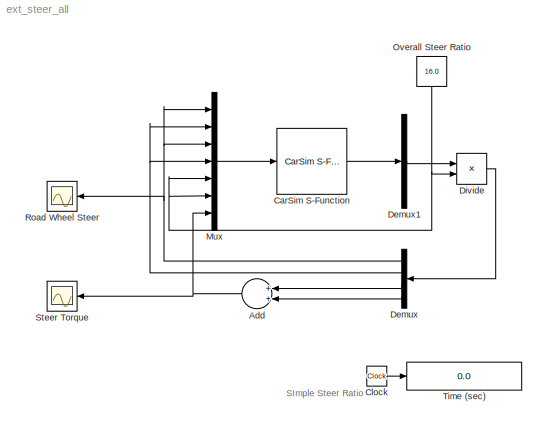
MODEL ext_steer_all
KIND model
BLOCK [Sum] Add
  InputSameDT = off
  OutDataTypeStr = Inherit: Inherit via internal rule
  Ports = [2, 1]
  SID = 50
  SaturateOnIntegerOverflow = off
BLOCK [Reference] CarSim S-Function  REF=Solver_SF/CarSim S-Function
  Ports = [1, 1]
  Priority = 1
  SID = 19
  SIMFILE = simfile.sim
  SourceBlock = Solver_SF/CarSim S-Function
  SourceType = Vehicle math model library
BLOCK [Clock] Clock
  Decimation = 10
  SID = 20
BLOCK [Demux] Demux
  DisplayOption = bar
  Ports = [1, 4]
  SID = 49
BLOCK [Demux] Demux1
  Outputs = [4]
  Ports = [1, 1]
  SID = 21
BLOCK [Product] Divide
  InputSameDT = off
  Inputs = */
  OutDataTypeStr = Inherit: Inherit via internal rule
  Ports = [2, 1]
  RndMeth = Floor
  SID = 46
  SaturateOnIntegerOverflow = off
BLOCK [Mux] Mux
  DisplayOption = bar
  Inputs = 7
  Ports = [7, 1]
  SID = 44
BLOCK [Constant] Overall Steer Ratio
  SID = 45
  Value = 16.0
BLOCK [Scope] Road Wheel Steer
  DataFormat = Array
  Floating = off
  LimitDataPoints = off
  NumInputPorts = 1
  Ports = [1]
  SID = 24
  SampleTime = 100
  TickLabels = on
  TimeRange = 7
  YMax = 1
  YMin = -2
  ZoomMode = yonly
BLOCK [Scope] Steer Torque
  DataFormat = Array
  Floating = off
  LimitDataPoints = off
  NumInputPorts = 1
  Ports = [1]
  SID = 42
  SampleTime = 100
  TickLabels = on
  TimeRange = 7
BLOCK [Display] Time (sec)
  Decimation = 100
  Format = bank
  Lockdown = off
  Ports = [1]
  SID = 40
ANNOTATION (root): SImple Steer Ratio
NET Add:1 -> Mux:7, Steer Torque:1
LINE CarSim S-Function:1 -> Demux1:1
LINE Clock:1 -> Time (sec):1
LINE Demux1:1 -> Divide:1
NET Demux:1 -> Mux:1, Mux:3, Road Wheel Steer:1
NET Demux:2 -> Mux:2, Mux:4
LINE Demux:3 -> Add:1
LINE Demux:4 -> Add:2
LINE Divide:1 -> Demux:1
LINE Mux:1 -> CarSim S-Function:1
NET Overall Steer Ratio:1 -> Divide:2, Mux:5, Mux:6
note: NET lines group one-source signal fan-out (src -> all destinations, sorted); 1:1 wires keep LINE
